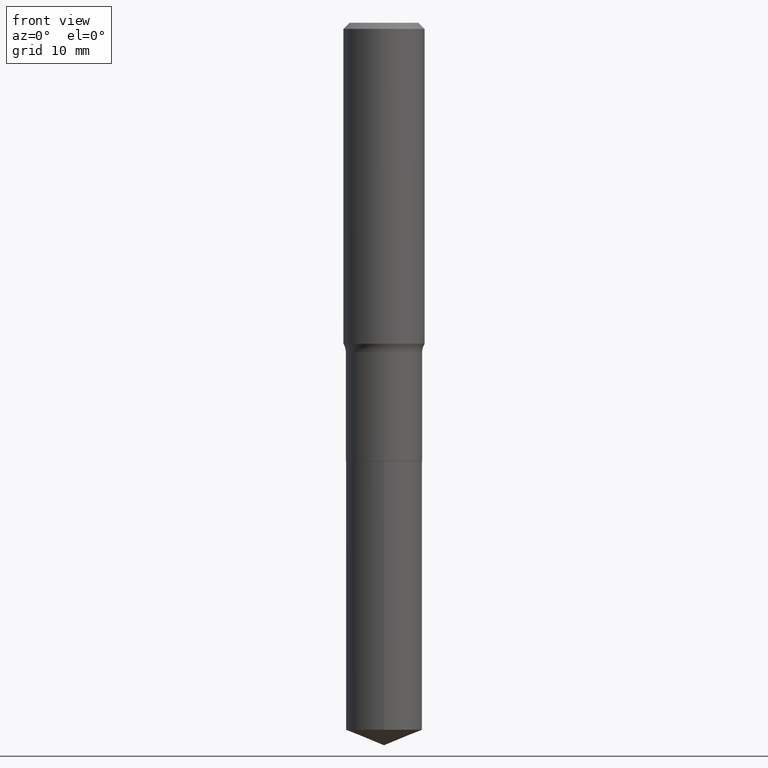
[diagram: clean part render]
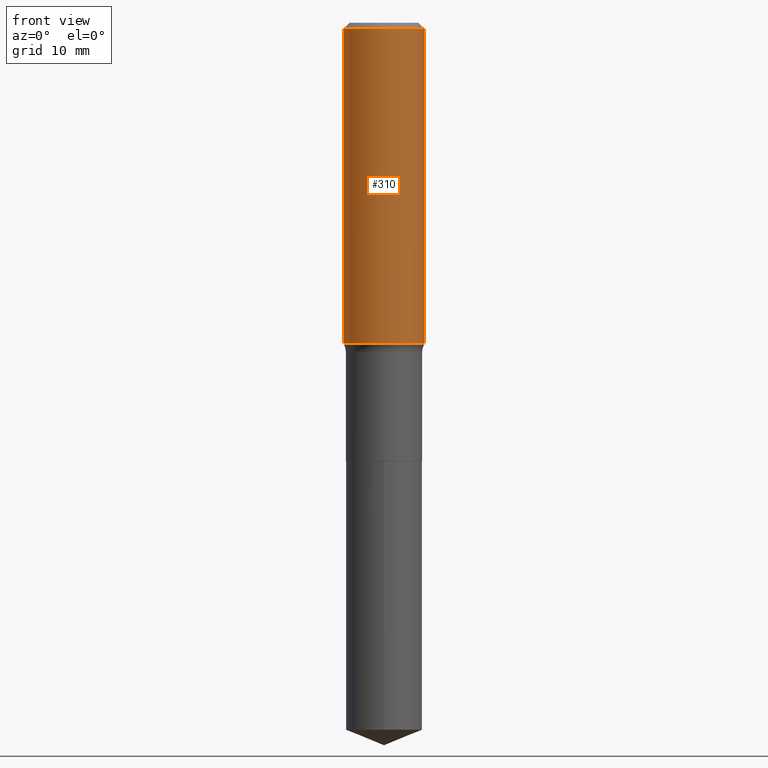
[diagram: same view with one face highlighted and labeled with its STEP entity id]
A machine part, front view. The second image highlights one B-rep face of the part: STEP entity #310.
In plain terms, the highlighted cylindrical surface (partial cylindrical patch) has radius 5 mm, axis along (-0, 0, 1).
Its self-contained STEP definition (entity closure, byte-faithful):
#1 = ORIENTED_EDGE ( 'NONE', *, *, #84, .F. ) ;
#6 = VERTEX_POINT ( 'NONE', #92 ) ;
#9 = CIRCLE ( 'NONE', #337, 0.1968500000000000527 ) ;
#45 = CARTESIAN_POINT ( 'NONE',  ( 0.1968500000000001082, -1.374596203102542397E-15, 9.598753983154305062E-30 ) ) ;
#69 = VERTEX_POINT ( 'NONE', #281 ) ;
#79 = EDGE_LOOP ( 'NONE', ( #284, #448, #360, #1 ) ) ;
#84 = EDGE_CURVE ( 'NONE', #69, #386, #9, .T. ) ;
#92 = CARTESIAN_POINT ( 'NONE',  ( 0.1968500000000002470, -6.809959883149110592E-15, -1.556750030303040599 ) ) ;
#135 = EDGE_CURVE ( 'NONE', #428, #6, #146, .T. ) ;
#140 = AXIS2_PLACEMENT_3D ( 'NONE', #411, #351, #265 ) ;
#141 = DIRECTION ( 'NONE',  ( 1.000000000000000000, -6.982962677686265922E-15, 0.000000000000000000 ) ) ;
#146 = CIRCLE ( 'NONE', #491, 0.1968500000000002192 ) ;
#147 = VECTOR ( 'NONE', #166, 39.37007874015748143 ) ;
#166 = DIRECTION ( 'NONE',  ( -2.445468806185136877E-29, 3.491481338843145188E-15, 1.000000000000000000 ) ) ;
#193 = CARTESIAN_POINT ( 'NONE',  ( 0.1968500000000000527, -1.477690918335233688E-15, -0.02952750000000022024 ) ) ;
#213 = CARTESIAN_POINT ( 'NONE',  ( 3.806983638133851740E-29, -5.435363680046567406E-15, -1.556750030303040599 ) ) ;
#232 = VECTOR ( 'NONE', #303, 39.37007874015748143 ) ;
#248 = CARTESIAN_POINT ( 'NONE',  ( 7.220858017463216492E-31, -1.030947152326917595E-16, -0.02952750000000022024 ) ) ;
#265 = DIRECTION ( 'NONE',  ( 1.000000000000000000, -6.982962677686266711E-15, 4.876176775795935793E-29 ) ) ;
#281 = CARTESIAN_POINT ( 'NONE',  ( -0.1968500000000000527, -1.370525822295871364E-15, -0.02952750000000022024 ) ) ;
#284 = ORIENTED_EDGE ( 'NONE', *, *, #367, .F. ) ;
#287 = CARTESIAN_POINT ( 'NONE',  ( -0.1968500000000002470, -4.036660304702808830E-15, -1.556750030303040599 ) ) ;
#303 = DIRECTION ( 'NONE',  ( -2.445468806185136877E-29, 3.491481338843145188E-15, 1.000000000000000000 ) ) ;
#306 = CARTESIAN_POINT ( 'NONE',  ( -0.1968500000000001082, 1.398703375343757985E-15, -9.682923725166787881E-30 ) ) ;
#308 = LINE ( 'NONE', #306, #232 ) ;
#310 = ADVANCED_FACE ( 'NONE', ( #443 ), #343, .T. ) ;
#324 = LINE ( 'NONE', #45, #147 ) ;
#337 = AXIS2_PLACEMENT_3D ( 'NONE', #248, #393, #465 ) ;
#343 = CYLINDRICAL_SURFACE ( 'NONE', #140, 0.1968500000000001082 ) ;
#351 = DIRECTION ( 'NONE',  ( -2.445468806185136597E-29, 3.491481338843145583E-15, 1.000000000000000000 ) ) ;
#360 = ORIENTED_EDGE ( 'NONE', *, *, #492, .T. ) ;
#367 = EDGE_CURVE ( 'NONE', #428, #69, #308, .T. ) ;
#386 = VERTEX_POINT ( 'NONE', #193 ) ;
#393 = DIRECTION ( 'NONE',  ( -2.445468806185136597E-29, 3.491481338843145583E-15, 1.000000000000000000 ) ) ;
#411 = CARTESIAN_POINT ( 'NONE',  ( 0.000000000000000000, 0.000000000000000000, 0.000000000000000000 ) ) ;
#428 = VERTEX_POINT ( 'NONE', #287 ) ;
#443 = FACE_OUTER_BOUND ( 'NONE', #79, .T. ) ;
#448 = ORIENTED_EDGE ( 'NONE', *, *, #135, .T. ) ;
#465 = DIRECTION ( 'NONE',  ( 1.000000000000000000, -6.982962677686266711E-15, 0.000000000000000000 ) ) ;
#472 = DIRECTION ( 'NONE',  ( -2.445468806185136597E-29, 3.491481338843145583E-15, 1.000000000000000000 ) ) ;
#491 = AXIS2_PLACEMENT_3D ( 'NONE', #213, #472, #141 ) ;
#492 = EDGE_CURVE ( 'NONE', #6, #386, #324, .T. ) ;